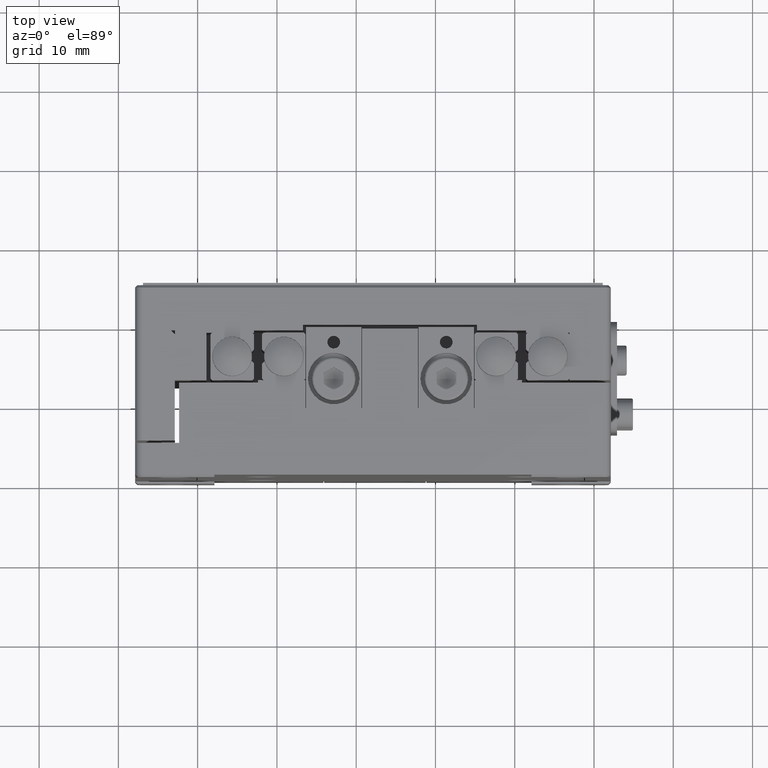
[diagram: clean part render]
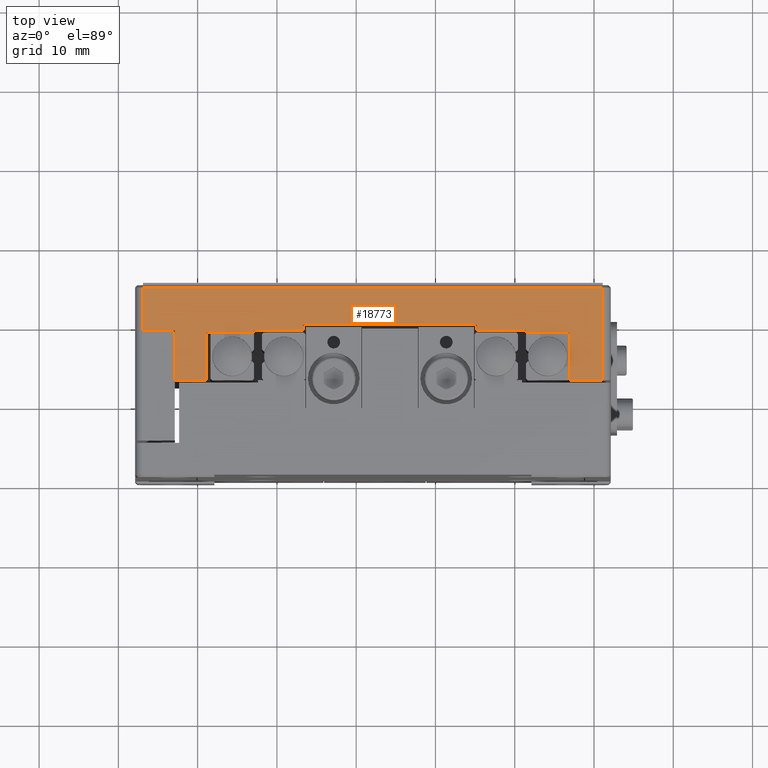
[diagram: same view with one face highlighted and labeled with its STEP entity id]
A machine part, top view. The second image highlights one B-rep face of the part: STEP entity #18773.
In plain terms, the highlighted planar face has unit normal (-0, 0, -1).
Its self-contained STEP definition (entity closure, byte-faithful):
#957 = CARTESIAN_POINT ( 'NONE',  ( 59.00000000000000000, 0.000000000000000000, 0.000000000000000000 ) ) ;
#1041 = DIRECTION ( 'NONE',  ( 1.000000000000000000, 1.219727444046191995E-16, 0.000000000000000000 ) ) ;
#1281 = CARTESIAN_POINT ( 'NONE',  ( 5.200000000000000178, 0.000000000000000000, 0.000000000000000000 ) ) ;
#1843 = VECTOR ( 'NONE', #16569, 1000.000000000000000 ) ;
#1881 = VERTEX_POINT ( 'NONE', #6793 ) ;
#1892 = EDGE_CURVE ( 'NONE', #7023, #4773, #4756, .T. ) ;
#2154 = DIRECTION ( 'NONE',  ( 0.000000000000000000, 1.000000000000000000, 0.000000000000000000 ) ) ;
#2213 = LINE ( 'NONE', #15232, #23945 ) ;
#2640 = ORIENTED_EDGE ( 'NONE', *, *, #14621, .T. ) ;
#2706 = VECTOR ( 'NONE', #2154, 1000.000000000000000 ) ;
#2845 = VERTEX_POINT ( 'NONE', #6758 ) ;
#2989 = EDGE_CURVE ( 'NONE', #5821, #15387, #9292, .T. ) ;
#3085 = DIRECTION ( 'NONE',  ( 1.000000000000000000, 0.000000000000000000, 0.000000000000000000 ) ) ;
#3383 = VECTOR ( 'NONE', #7002, 1000.000000000000000 ) ;
#3512 = CARTESIAN_POINT ( 'NONE',  ( 51.00000000000000000, 6.000000000000000000, 0.000000000000000000 ) ) ;
#3629 = CARTESIAN_POINT ( 'NONE',  ( 1.000000000000000000, 11.70000000000000107, 0.000000000000000000 ) ) ;
#3659 = VECTOR ( 'NONE', #20545, 1000.000000000000000 ) ;
#3753 = FACE_OUTER_BOUND ( 'NONE', #13322, .T. ) ;
#3773 = VECTOR ( 'NONE', #15006, 1000.000000000000000 ) ;
#4013 = VECTOR ( 'NONE', #1041, 1000.000000000000000 ) ;
#4080 = DIRECTION ( 'NONE',  ( 0.000000000000000000, -1.000000000000000000, 0.000000000000000000 ) ) ;
#4607 = EDGE_CURVE ( 'NONE', #9379, #15722, #24034, .T. ) ;
#4756 = LINE ( 'NONE', #24330, #3659 ) ;
#4773 = VERTEX_POINT ( 'NONE', #5583 ) ;
#4861 = LINE ( 'NONE', #957, #17633 ) ;
#5583 = CARTESIAN_POINT ( 'NONE',  ( 45.00000000000000000, 6.299999999999999822, 0.000000000000000000 ) ) ;
#5708 = CARTESIAN_POINT ( 'NONE',  ( 1.000000000000000000, 0.000000000000000000, 0.000000000000000000 ) ) ;
#5775 = CARTESIAN_POINT ( 'NONE',  ( 55.00000000000000000, 6.299999999999999822, 0.000000000000000000 ) ) ;
#5821 = VERTEX_POINT ( 'NONE', #8254 ) ;
#5858 = CARTESIAN_POINT ( 'NONE',  ( 51.00000000000000000, -1.355252715606879951E-15, 0.000000000000000000 ) ) ;
#6758 = CARTESIAN_POINT ( 'NONE',  ( 16.89999999999999858, 7.000000000000000000, 0.000000000000000000 ) ) ;
#6793 = CARTESIAN_POINT ( 'NONE',  ( 16.89999999999999858, 6.299999999999999822, 0.000000000000000000 ) ) ;
#7002 = DIRECTION ( 'NONE',  ( 0.000000000000000000, -1.000000000000000000, 0.000000000000000000 ) ) ;
#7023 = VERTEX_POINT ( 'NONE', #13099 ) ;
#7079 = CARTESIAN_POINT ( 'NONE',  ( 10.69999999999999929, 6.299999999999999822, 0.000000000000000000 ) ) ;
#7304 = VERTEX_POINT ( 'NONE', #3629 ) ;
#7454 = EDGE_CURVE ( 'NONE', #2845, #13028, #19023, .T. ) ;
#7505 = DIRECTION ( 'NONE',  ( 0.000000000000000000, 1.000000000000000000, 0.000000000000000000 ) ) ;
#7630 = EDGE_CURVE ( 'NONE', #7304, #23132, #24070, .T. ) ;
#7716 = CARTESIAN_POINT ( 'NONE',  ( 45.00000000000000000, 6.000000000000000000, 0.000000000000000000 ) ) ;
#7733 = EDGE_CURVE ( 'NONE', #23132, #12338, #4861, .T. ) ;
#7875 = CARTESIAN_POINT ( 'NONE',  ( 10.69999999999999929, 6.000000000000000000, 0.000000000000000000 ) ) ;
#8221 = EDGE_CURVE ( 'NONE', #22086, #23279, #13168, .T. ) ;
#8226 = DIRECTION ( 'NONE',  ( 0.000000000000000000, 1.000000000000000000, 0.000000000000000000 ) ) ;
#8254 = CARTESIAN_POINT ( 'NONE',  ( 10.69999999999999929, 6.000000000000000000, 0.000000000000000000 ) ) ;
#8664 = DIRECTION ( 'NONE',  ( 0.000000000000000000, -1.000000000000000000, 0.000000000000000000 ) ) ;
#8762 = VECTOR ( 'NONE', #7505, 1000.000000000000000 ) ;
#8856 = VECTOR ( 'NONE', #4080, 1000.000000000000000 ) ;
#9127 = LINE ( 'NONE', #1281, #1843 ) ;
#9292 = LINE ( 'NONE', #7875, #8762 ) ;
#9359 = DIRECTION ( 'NONE',  ( 1.000000000000000000, 0.000000000000000000, 0.000000000000000000 ) ) ;
#9379 = VERTEX_POINT ( 'NONE', #17971 ) ;
#9595 = DIRECTION ( 'NONE',  ( 1.000000000000000000, 0.000000000000000000, 0.000000000000000000 ) ) ;
#9693 = CARTESIAN_POINT ( 'NONE',  ( 51.00000000000000000, 6.000000000000000000, 0.000000000000000000 ) ) ;
#9948 = EDGE_CURVE ( 'NONE', #16986, #12338, #24261, .T. ) ;
#10013 = VECTOR ( 'NONE', #16962, 1000.000000000000000 ) ;
#10353 = CARTESIAN_POINT ( 'NONE',  ( 59.00000000000000000, 6.299999999999999822, 0.000000000000000000 ) ) ;
#10754 = DIRECTION ( 'NONE',  ( 1.000000000000000000, 1.734723475976809806E-16, 0.000000000000000000 ) ) ;
#11035 = CARTESIAN_POINT ( 'NONE',  ( 16.89999999999999858, 7.000000000000000000, 0.000000000000000000 ) ) ;
#11112 = ORIENTED_EDGE ( 'NONE', *, *, #23505, .F. ) ;
#11226 = PLANE ( 'NONE',  #21123 ) ;
#11231 = EDGE_CURVE ( 'NONE', #21391, #9379, #19963, .T. ) ;
#11434 = DIRECTION ( 'NONE',  ( 0.000000000000000000, -1.000000000000000000, 0.000000000000000000 ) ) ;
#11451 = VECTOR ( 'NONE', #8226, 1000.000000000000000 ) ;
#11466 = CARTESIAN_POINT ( 'NONE',  ( 5.200000000000000178, 6.000000000000000000, 0.000000000000000000 ) ) ;
#11616 = EDGE_CURVE ( 'NONE', #22086, #7304, #19459, .T. ) ;
#11632 = CARTESIAN_POINT ( 'NONE',  ( 55.00000000000000000, 6.299999999999999822, 0.000000000000000000 ) ) ;
#11876 = ORIENTED_EDGE ( 'NONE', *, *, #11231, .F. ) ;
#12027 = EDGE_CURVE ( 'NONE', #15387, #1881, #22734, .T. ) ;
#12338 = VERTEX_POINT ( 'NONE', #10353 ) ;
#12803 = CARTESIAN_POINT ( 'NONE',  ( 45.00000000000000000, 6.000000000000000000, 0.000000000000000000 ) ) ;
#12925 = LINE ( 'NONE', #11035, #22514 ) ;
#13028 = VERTEX_POINT ( 'NONE', #15688 ) ;
#13099 = CARTESIAN_POINT ( 'NONE',  ( 38.80000000000000426, 6.299999999999999822, 0.000000000000000000 ) ) ;
#13168 = LINE ( 'NONE', #24669, #10013 ) ;
#13249 = ORIENTED_EDGE ( 'NONE', *, *, #11616, .T. ) ;
#13322 = EDGE_LOOP ( 'NONE', ( #24790, #15251, #14201, #2640, #23226, #23525, #19133, #15347, #13445, #13249, #18200, #19229, #21215, #11112, #22942, #11876, #13618, #21309 ) ) ;
#13384 = CARTESIAN_POINT ( 'NONE',  ( 5.200000000000000178, 6.000000000000000000, 0.000000000000000000 ) ) ;
#13445 = ORIENTED_EDGE ( 'NONE', *, *, #8221, .F. ) ;
#13618 = ORIENTED_EDGE ( 'NONE', *, *, #18803, .F. ) ;
#14201 = ORIENTED_EDGE ( 'NONE', *, *, #7454, .F. ) ;
#14334 = CARTESIAN_POINT ( 'NONE',  ( 0.000000000000000000, 11.70000000000000107, 0.000000000000000000 ) ) ;
#14621 = EDGE_CURVE ( 'NONE', #2845, #1881, #12925, .T. ) ;
#15006 = DIRECTION ( 'NONE',  ( 1.000000000000000000, 1.445602896647339903E-16, 0.000000000000000000 ) ) ;
#15232 = CARTESIAN_POINT ( 'NONE',  ( 38.80000000000000426, 7.000000000000000000, 0.000000000000000000 ) ) ;
#15251 = ORIENTED_EDGE ( 'NONE', *, *, #21338, .F. ) ;
#15340 = CARTESIAN_POINT ( 'NONE',  ( 59.00000000000000000, 11.70000000000000107, 0.000000000000000000 ) ) ;
#15347 = ORIENTED_EDGE ( 'NONE', *, *, #22103, .F. ) ;
#15380 = CARTESIAN_POINT ( 'NONE',  ( 55.00000000000000000, -8.673617379884030542E-16, 0.000000000000000000 ) ) ;
#15387 = VERTEX_POINT ( 'NONE', #18256 ) ;
#15421 = LINE ( 'NONE', #11632, #2706 ) ;
#15688 = CARTESIAN_POINT ( 'NONE',  ( 38.80000000000000426, 7.000000000000000000, 0.000000000000000000 ) ) ;
#15722 = VERTEX_POINT ( 'NONE', #15380 ) ;
#16569 = DIRECTION ( 'NONE',  ( 0.000000000000000000, 1.000000000000000000, 0.000000000000000000 ) ) ;
#16712 = DIRECTION ( 'NONE',  ( 0.000000000000000000, -1.000000000000000000, 0.000000000000000000 ) ) ;
#16962 = DIRECTION ( 'NONE',  ( 1.000000000000000000, 0.000000000000000000, 0.000000000000000000 ) ) ;
#16986 = VERTEX_POINT ( 'NONE', #5775 ) ;
#17020 = DIRECTION ( 'NONE',  ( 1.000000000000000000, 0.000000000000000000, 0.000000000000000000 ) ) ;
#17241 = VECTOR ( 'NONE', #3085, 1000.000000000000000 ) ;
#17633 = VECTOR ( 'NONE', #8664, 1000.000000000000000 ) ;
#17971 = CARTESIAN_POINT ( 'NONE',  ( 51.00000000000000000, -1.355252715606879951E-15, 0.000000000000000000 ) ) ;
#18200 = ORIENTED_EDGE ( 'NONE', *, *, #7630, .T. ) ;
#18256 = CARTESIAN_POINT ( 'NONE',  ( 10.69999999999999929, 6.299999999999999822, 0.000000000000000000 ) ) ;
#18518 = VECTOR ( 'NONE', #10754, 1000.000000000000000 ) ;
#18773 = ADVANCED_FACE ( 'NONE', ( #3753 ), #11226, .F. ) ;
#18803 = EDGE_CURVE ( 'NONE', #20587, #21391, #22976, .T. ) ;
#19023 = LINE ( 'NONE', #20802, #20804 ) ;
#19133 = ORIENTED_EDGE ( 'NONE', *, *, #23793, .F. ) ;
#19229 = ORIENTED_EDGE ( 'NONE', *, *, #7733, .T. ) ;
#19292 = DIRECTION ( 'NONE',  ( 1.000000000000000000, 0.000000000000000000, 0.000000000000000000 ) ) ;
#19459 = LINE ( 'NONE', #5708, #11451 ) ;
#19963 = LINE ( 'NONE', #5858, #8856 ) ;
#20223 = CARTESIAN_POINT ( 'NONE',  ( 55.00000000000000000, -8.673617379884030542E-16, 0.000000000000000000 ) ) ;
#20529 = VERTEX_POINT ( 'NONE', #13384 ) ;
#20545 = DIRECTION ( 'NONE',  ( 1.000000000000000000, 0.000000000000000000, 0.000000000000000000 ) ) ;
#20587 = VERTEX_POINT ( 'NONE', #7716 ) ;
#20717 = CARTESIAN_POINT ( 'NONE',  ( 60.00000000000000000, 6.299999999999999822, 0.000000000000000000 ) ) ;
#20742 = VECTOR ( 'NONE', #9359, 1000.000000000000000 ) ;
#20802 = CARTESIAN_POINT ( 'NONE',  ( 16.89999999999999858, 7.000000000000000000, 0.000000000000000000 ) ) ;
#20804 = VECTOR ( 'NONE', #17020, 1000.000000000000000 ) ;
#20858 = CARTESIAN_POINT ( 'NONE',  ( 5.200000000000000178, 0.000000000000000000, 0.000000000000000000 ) ) ;
#21065 = CARTESIAN_POINT ( 'NONE',  ( 0.000000000000000000, 0.000000000000000000, 0.000000000000000000 ) ) ;
#21123 = AXIS2_PLACEMENT_3D ( 'NONE', #21065, #21319, #19292 ) ;
#21215 = ORIENTED_EDGE ( 'NONE', *, *, #9948, .F. ) ;
#21309 = ORIENTED_EDGE ( 'NONE', *, *, #21712, .F. ) ;
#21319 = DIRECTION ( 'NONE',  ( 0.000000000000000000, 0.000000000000000000, 1.000000000000000000 ) ) ;
#21338 = EDGE_CURVE ( 'NONE', #13028, #7023, #2213, .T. ) ;
#21391 = VERTEX_POINT ( 'NONE', #9693 ) ;
#21712 = EDGE_CURVE ( 'NONE', #4773, #20587, #22282, .T. ) ;
#22086 = VERTEX_POINT ( 'NONE', #22629 ) ;
#22103 = EDGE_CURVE ( 'NONE', #23279, #20529, #9127, .T. ) ;
#22282 = LINE ( 'NONE', #12803, #3383 ) ;
#22514 = VECTOR ( 'NONE', #16712, 1000.000000000000000 ) ;
#22629 = CARTESIAN_POINT ( 'NONE',  ( 1.000000000000000000, 0.000000000000000000, 0.000000000000000000 ) ) ;
#22734 = LINE ( 'NONE', #7079, #20742 ) ;
#22883 = VECTOR ( 'NONE', #9595, 1000.000000000000000 ) ;
#22942 = ORIENTED_EDGE ( 'NONE', *, *, #4607, .F. ) ;
#22976 = LINE ( 'NONE', #3512, #3773 ) ;
#23132 = VERTEX_POINT ( 'NONE', #15340 ) ;
#23226 = ORIENTED_EDGE ( 'NONE', *, *, #12027, .F. ) ;
#23279 = VERTEX_POINT ( 'NONE', #20858 ) ;
#23505 = EDGE_CURVE ( 'NONE', #15722, #16986, #15421, .T. ) ;
#23525 = ORIENTED_EDGE ( 'NONE', *, *, #2989, .F. ) ;
#23793 = EDGE_CURVE ( 'NONE', #20529, #5821, #24868, .T. ) ;
#23945 = VECTOR ( 'NONE', #11434, 1000.000000000000000 ) ;
#24034 = LINE ( 'NONE', #20223, #4013 ) ;
#24070 = LINE ( 'NONE', #14334, #17241 ) ;
#24261 = LINE ( 'NONE', #20717, #18518 ) ;
#24330 = CARTESIAN_POINT ( 'NONE',  ( 10.69999999999999929, 6.299999999999999822, 0.000000000000000000 ) ) ;
#24669 = CARTESIAN_POINT ( 'NONE',  ( 0.000000000000000000, 0.000000000000000000, 0.000000000000000000 ) ) ;
#24790 = ORIENTED_EDGE ( 'NONE', *, *, #1892, .F. ) ;
#24868 = LINE ( 'NONE', #11466, #22883 ) ;